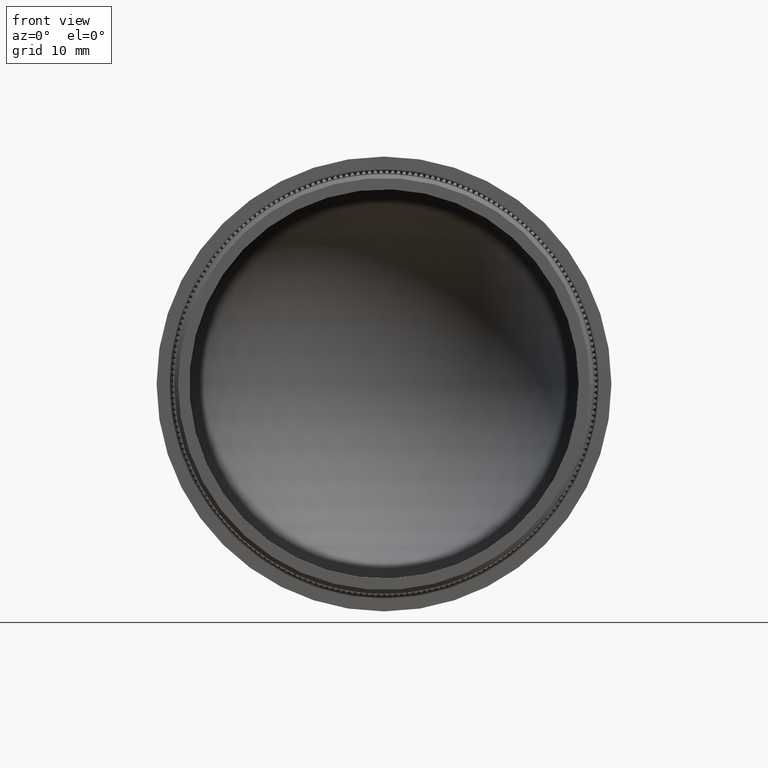
[diagram: clean part render]
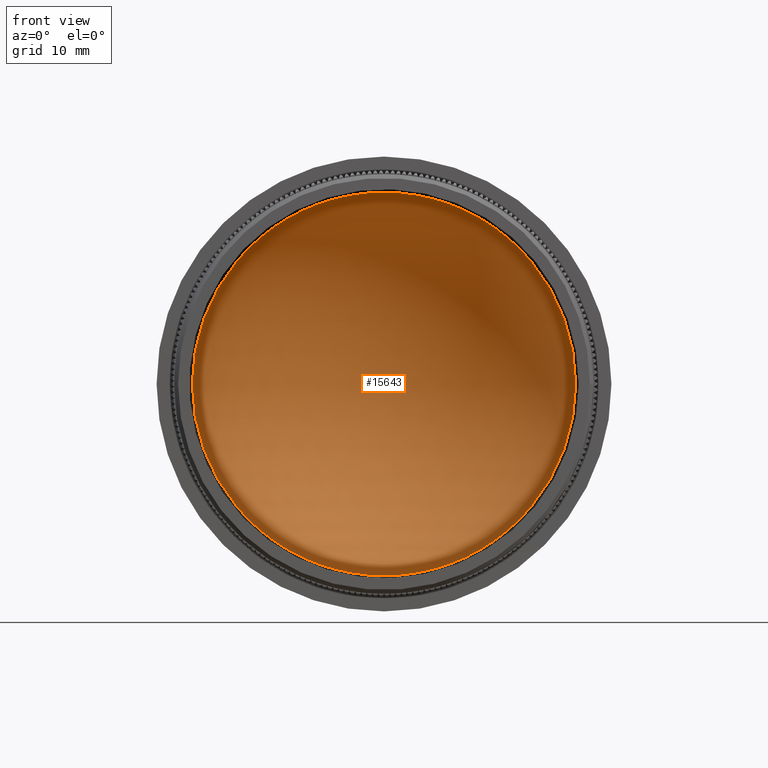
[diagram: same view with one face highlighted and labeled with its STEP entity id]
A machine part, front view. The second image highlights one B-rep face of the part: STEP entity #15643.
In plain terms, the highlighted spherical surface has radius 26.45 mm.
Its self-contained STEP definition (entity closure, byte-faithful):
#1698 = AXIS2_PLACEMENT_3D ( 'NONE', #12795, #43573, #5040 ) ;
#4831 = EDGE_LOOP ( 'NONE', ( #32786 ) ) ;
#5040 = DIRECTION ( 'NONE',  ( -1.000000000000000000, 1.311700170870932184E-15, 0.000000000000000000 ) ) ;
#5914 = SPHERICAL_SURFACE ( 'NONE', #1698, 26.44999999999999218 ) ;
#12726 = CIRCLE ( 'NONE', #42506, 25.40486322188457535 ) ;
#12795 = CARTESIAN_POINT ( 'NONE',  ( 4.979459025271463641E-15, 15.99999999999999645, 0.000000000000000000 ) ) ;
#15643 = ADVANCED_FACE ( 'NONE', ( #47171 ), #5914, .F. ) ;
#22551 = CARTESIAN_POINT ( 'NONE',  ( 1.488690586778599275E-14, 23.36175418479428956, 0.000000000000000000 ) ) ;
#29896 = DIRECTION ( 'NONE',  ( -1.345799736559849324E-15, -1.000000000000000000, -0.000000000000000000 ) ) ;
#31834 = EDGE_CURVE ( 'NONE', #45373, #45373, #12726, .T. ) ;
#32786 = ORIENTED_EDGE ( 'NONE', *, *, #31834, .T. ) ;
#34361 = DIRECTION ( 'NONE',  ( 1.000000000000000000, -1.365662519672579661E-15, 0.000000000000000000 ) ) ;
#40825 = CARTESIAN_POINT ( 'NONE',  ( 25.40486322188458956, 23.36175418479425403, 0.000000000000000000 ) ) ;
#42506 = AXIS2_PLACEMENT_3D ( 'NONE', #22551, #29896, #34361 ) ;
#43573 = DIRECTION ( 'NONE',  ( 0.000000000000000000, 0.000000000000000000, -1.000000000000000000 ) ) ;
#45373 = VERTEX_POINT ( 'NONE', #40825 ) ;
#47171 = FACE_OUTER_BOUND ( 'NONE', #4831, .T. ) ;